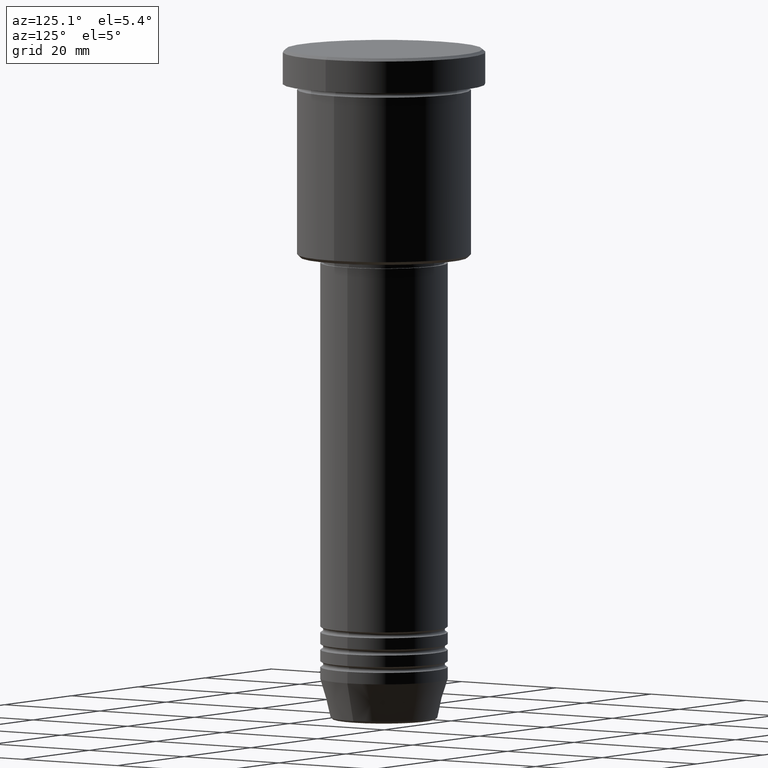
[diagram: clean part render]
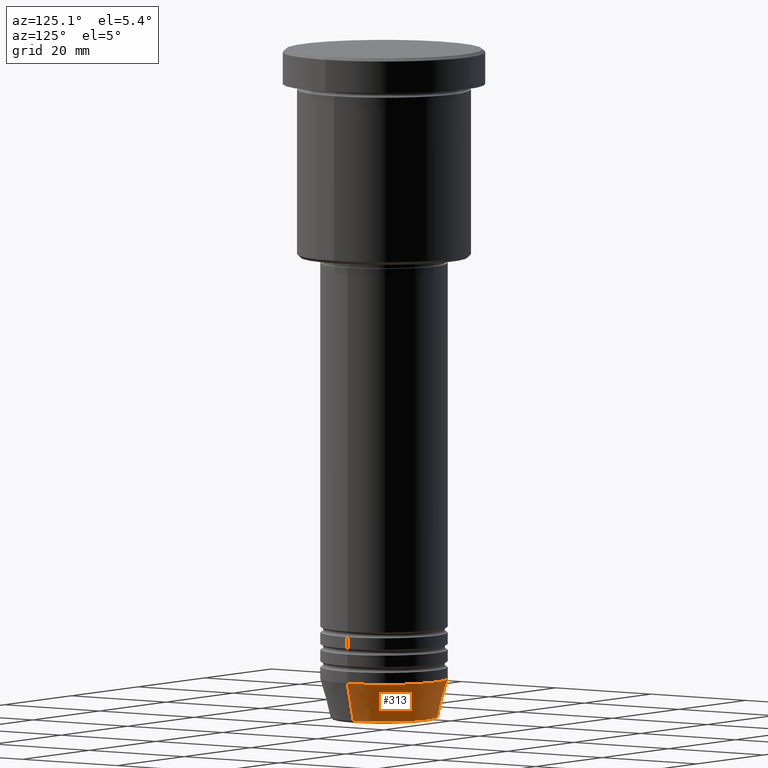
[diagram: same view with one face highlighted and labeled with its STEP entity id]
A machine part, auxiliary view. The second image highlights one B-rep face of the part: STEP entity #313.
In plain terms, the highlighted conical surface has half-angle 15 deg.
Its self-contained STEP definition (entity closure, byte-faithful):
#2 = DIRECTION ( 'NONE',  ( -0.000000000000000000, -0.000000000000000000, 1.000000000000000000 ) ) ;
#41 = CONICAL_SURFACE ( 'NONE', #823, 11.00000000000000000, 0.2617993877991500740 ) ;
#60 = VERTEX_POINT ( 'NONE', #683 ) ;
#103 = AXIS2_PLACEMENT_3D ( 'NONE', #1029, #849, #679 ) ;
#127 = DIRECTION ( 'NONE',  ( 0.2588190451025213501, 0.000000000000000000, 0.9659258262890680902 ) ) ;
#135 = VERTEX_POINT ( 'NONE', #884 ) ;
#213 = EDGE_CURVE ( 'NONE', #478, #424, #708, .T. ) ;
#244 = CARTESIAN_POINT ( 'NONE',  ( 11.00000000000000000, 0.000000000000000000, -109.0000000000000142 ) ) ;
#275 = CARTESIAN_POINT ( 'NONE',  ( -9.223655072137191269, 1.238341722557647202E-15, -115.6294095225512564 ) ) ;
#283 = DIRECTION ( 'NONE',  ( -0.2588190451025213501, 3.169619151431772337E-17, 0.9659258262890680902 ) ) ;
#313 = ADVANCED_FACE ( 'NONE', ( #375 ), #41, .T. ) ;
#341 = EDGE_LOOP ( 'NONE', ( #1045, #967, #684, #987 ) ) ;
#375 = FACE_OUTER_BOUND ( 'NONE', #341, .T. ) ;
#424 = VERTEX_POINT ( 'NONE', #275 ) ;
#430 = LINE ( 'NONE', #437, #825 ) ;
#437 = CARTESIAN_POINT ( 'NONE',  ( -11.00000000000000000, 1.347111479062088405E-15, -109.0000000000000142 ) ) ;
#462 = DIRECTION ( 'NONE',  ( -0.000000000000000000, -0.000000000000000000, 1.000000000000000000 ) ) ;
#478 = VERTEX_POINT ( 'NONE', #1116 ) ;
#529 = VECTOR ( 'NONE', #127, 1000.000000000000000 ) ;
#557 = DIRECTION ( 'NONE',  ( 1.000000000000000000, 0.000000000000000000, 0.000000000000000000 ) ) ;
#679 = DIRECTION ( 'NONE',  ( 1.000000000000000000, 0.000000000000000000, 0.000000000000000000 ) ) ;
#683 = CARTESIAN_POINT ( 'NONE',  ( -11.00000000000000000, 1.347111479062088405E-15, -109.0000000000000142 ) ) ;
#684 = ORIENTED_EDGE ( 'NONE', *, *, #961, .F. ) ;
#708 = CIRCLE ( 'NONE', #103, 9.223655072137191269 ) ;
#710 = AXIS2_PLACEMENT_3D ( 'NONE', #1115, #462, #847 ) ;
#759 = CARTESIAN_POINT ( 'NONE',  ( 0.000000000000000000, 0.000000000000000000, -109.0000000000000142 ) ) ;
#789 = EDGE_CURVE ( 'NONE', #424, #60, #430, .T. ) ;
#823 = AXIS2_PLACEMENT_3D ( 'NONE', #759, #2, #557 ) ;
#825 = VECTOR ( 'NONE', #283, 1000.000000000000000 ) ;
#847 = DIRECTION ( 'NONE',  ( 1.000000000000000000, 0.000000000000000000, 0.000000000000000000 ) ) ;
#849 = DIRECTION ( 'NONE',  ( -0.000000000000000000, -0.000000000000000000, 1.000000000000000000 ) ) ;
#884 = CARTESIAN_POINT ( 'NONE',  ( 11.00000000000000000, 0.000000000000000000, -109.0000000000000142 ) ) ;
#943 = CIRCLE ( 'NONE', #710, 11.00000000000000000 ) ;
#961 = EDGE_CURVE ( 'NONE', #135, #60, #943, .T. ) ;
#967 = ORIENTED_EDGE ( 'NONE', *, *, #789, .T. ) ;
#987 = ORIENTED_EDGE ( 'NONE', *, *, #1168, .F. ) ;
#1029 = CARTESIAN_POINT ( 'NONE',  ( 0.000000000000000000, 0.000000000000000000, -115.6294095225512564 ) ) ;
#1045 = ORIENTED_EDGE ( 'NONE', *, *, #213, .T. ) ;
#1115 = CARTESIAN_POINT ( 'NONE',  ( 0.000000000000000000, 0.000000000000000000, -109.0000000000000142 ) ) ;
#1116 = CARTESIAN_POINT ( 'NONE',  ( 9.223655072137191269, 0.000000000000000000, -115.6294095225512564 ) ) ;
#1141 = LINE ( 'NONE', #244, #529 ) ;
#1168 = EDGE_CURVE ( 'NONE', #478, #135, #1141, .T. ) ;